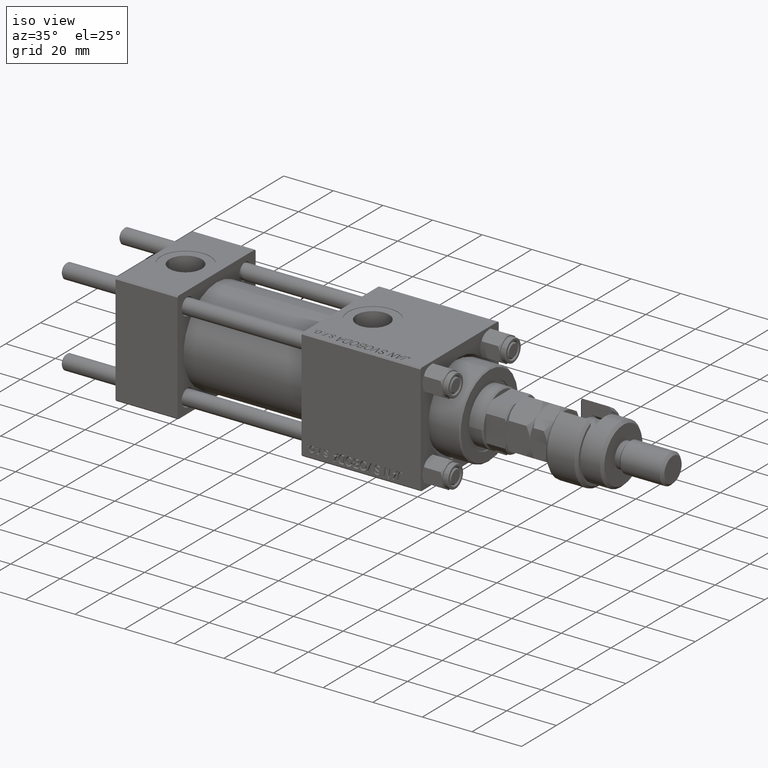
[diagram: clean part render]
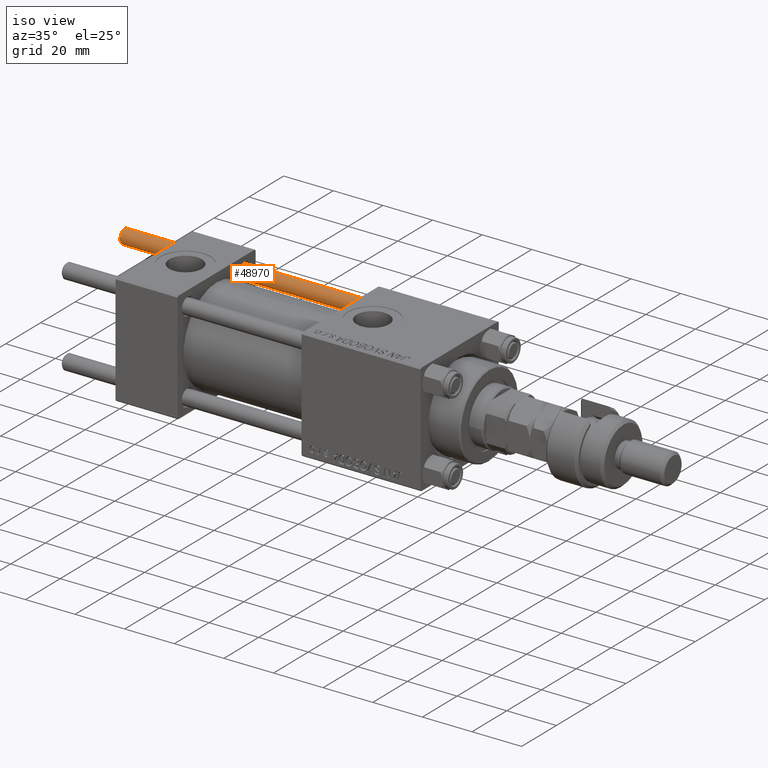
[diagram: same view with one face highlighted and labeled with its STEP entity id]
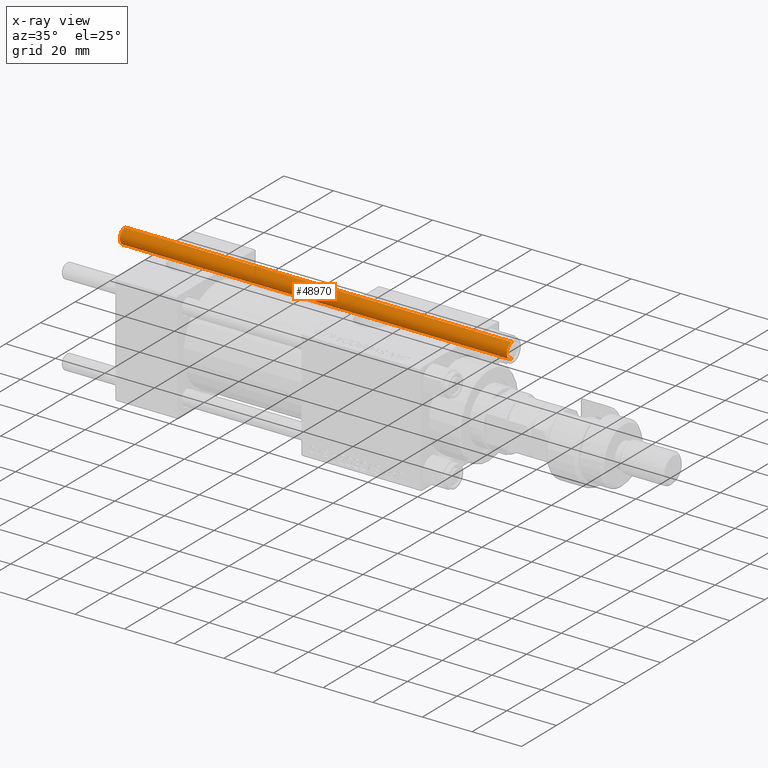
[diagram: x-ray of the same camera — body ghosted, the highlighted face saturated]
A machine part, iso view. The second image highlights one B-rep face of the part: STEP entity #48970.
The next image is the same camera in x-ray: the body ghosted, the highlighted face saturated — about 0% of this face is hidden behind the body in this view.
In plain terms, the highlighted cylindrical surface (edge-blend (fillet) strip) has radius 3 mm, axis along (-1, -0, -0).
Its self-contained STEP definition (entity closure, byte-faithful):
#512 = DIRECTION ( 'NONE',  ( -0.000000000000000000, -0.000000000000000000, -1.000000000000000000 ) ) ;
#2786 = CIRCLE ( 'NONE', #26586, 3.000000000000000444 ) ;
#3551 = VECTOR ( 'NONE', #39130, 1000.000000000000000 ) ;
#3827 = AXIS2_PLACEMENT_3D ( 'NONE', #5274, #512, #17256 ) ;
#4495 = CARTESIAN_POINT ( 'NONE',  ( 0.000000000000000000, 0.000000000000000000, 156.5000000000000284 ) ) ;
#5274 = CARTESIAN_POINT ( 'NONE',  ( 0.000000000000000000, 0.000000000000000000, 157.0000000000000000 ) ) ;
#6111 = LINE ( 'NONE', #26618, #3551 ) ;
#6314 = EDGE_CURVE ( 'NONE', #27939, #52342, #6111, .T. ) ;
#8388 = EDGE_CURVE ( 'NONE', #18178, #27939, #2786, .T. ) ;
#8595 = EDGE_CURVE ( 'NONE', #52342, #49098, #47023, .T. ) ;
#9516 = CYLINDRICAL_SURFACE ( 'NONE', #3827, 3.000000000000000444 ) ;
#11775 = EDGE_CURVE ( 'NONE', #18178, #49098, #42588, .T. ) ;
#12161 = CARTESIAN_POINT ( 'NONE',  ( 3.000000000000000444, 3.673940397442060361E-16, 0.4999999999999726885 ) ) ;
#13007 = DIRECTION ( 'NONE',  ( 1.000000000000000000, 0.000000000000000000, 0.000000000000000000 ) ) ;
#16676 = ORIENTED_EDGE ( 'NONE', *, *, #8595, .T. ) ;
#17256 = DIRECTION ( 'NONE',  ( -1.000000000000000000, 0.000000000000000000, 0.000000000000000000 ) ) ;
#18071 = DIRECTION ( 'NONE',  ( -0.000000000000000000, -0.000000000000000000, -1.000000000000000000 ) ) ;
#18178 = VERTEX_POINT ( 'NONE', #48637 ) ;
#19468 = EDGE_LOOP ( 'NONE', ( #32700, #35573, #40406, #16676 ) ) ;
#24043 = AXIS2_PLACEMENT_3D ( 'NONE', #49212, #28933, #28417 ) ;
#25514 = FACE_OUTER_BOUND ( 'NONE', #19468, .T. ) ;
#26586 = AXIS2_PLACEMENT_3D ( 'NONE', #4495, #36722, #13007 ) ;
#26618 = CARTESIAN_POINT ( 'NONE',  ( -3.000000000000000444, 0.000000000000000000, 157.0000000000000000 ) ) ;
#27939 = VERTEX_POINT ( 'NONE', #51760 ) ;
#28417 = DIRECTION ( 'NONE',  ( 1.000000000000000000, 0.000000000000000000, 0.000000000000000000 ) ) ;
#28933 = DIRECTION ( 'NONE',  ( -0.000000000000000000, -0.000000000000000000, 1.000000000000000000 ) ) ;
#30591 = CARTESIAN_POINT ( 'NONE',  ( 3.000000000000000444, 3.673940397442060361E-16, 157.0000000000000000 ) ) ;
#31489 = CARTESIAN_POINT ( 'NONE',  ( -3.000000000000000444, 0.000000000000000000, 0.4999999999999726885 ) ) ;
#32700 = ORIENTED_EDGE ( 'NONE', *, *, #11775, .F. ) ;
#35573 = ORIENTED_EDGE ( 'NONE', *, *, #8388, .T. ) ;
#36722 = DIRECTION ( 'NONE',  ( 0.000000000000000000, 0.000000000000000000, -1.000000000000000000 ) ) ;
#39130 = DIRECTION ( 'NONE',  ( -0.000000000000000000, -0.000000000000000000, -1.000000000000000000 ) ) ;
#40406 = ORIENTED_EDGE ( 'NONE', *, *, #6314, .T. ) ;
#42588 = LINE ( 'NONE', #30591, #43752 ) ;
#43752 = VECTOR ( 'NONE', #18071, 1000.000000000000000 ) ;
#47023 = CIRCLE ( 'NONE', #24043, 3.000000000000000444 ) ;
#48637 = CARTESIAN_POINT ( 'NONE',  ( 3.000000000000000444, 3.673940397442060361E-16, 156.5000000000000284 ) ) ;
#48970 = ADVANCED_FACE ( 'NONE', ( #25514 ), #9516, .T. ) ;
#49098 = VERTEX_POINT ( 'NONE', #12161 ) ;
#49212 = CARTESIAN_POINT ( 'NONE',  ( 0.000000000000000000, 0.000000000000000000, 0.4999999999999726885 ) ) ;
#51760 = CARTESIAN_POINT ( 'NONE',  ( -3.000000000000000444, 0.000000000000000000, 156.5000000000000284 ) ) ;
#52342 = VERTEX_POINT ( 'NONE', #31489 ) ;